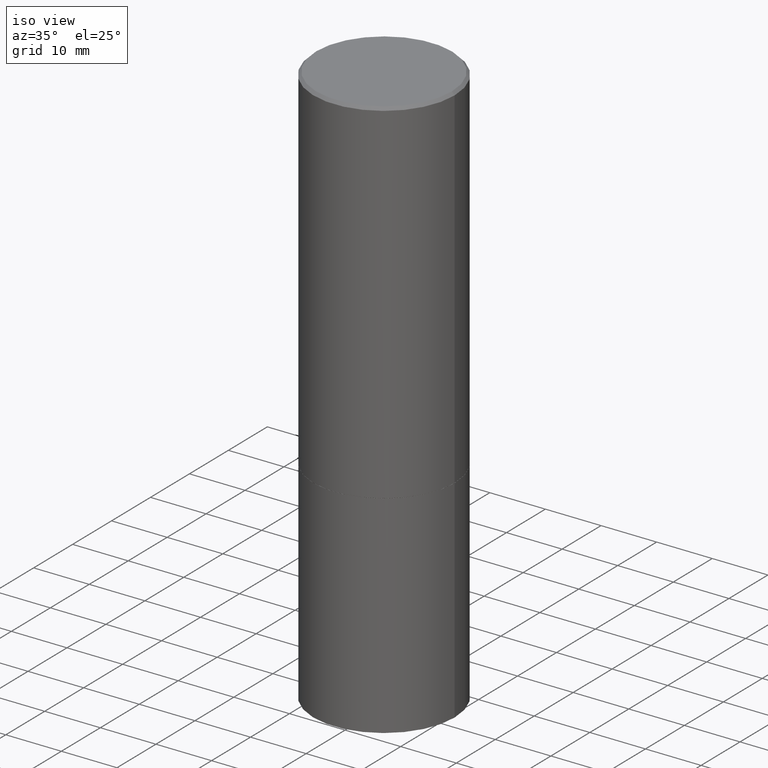
[diagram: clean part render]
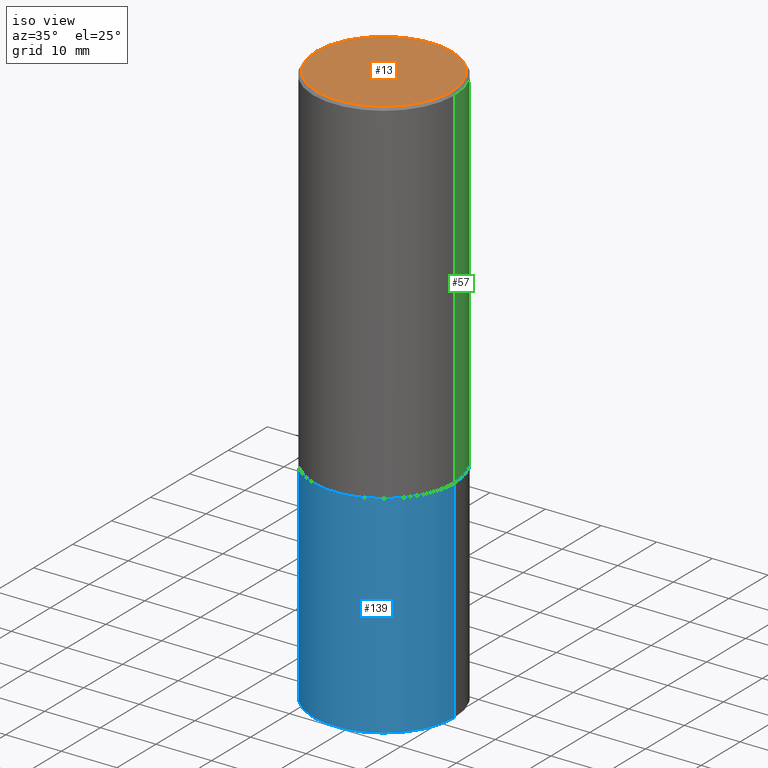
[diagram: same view with three faces highlighted in distinct colors, each labeled with its STEP entity id]
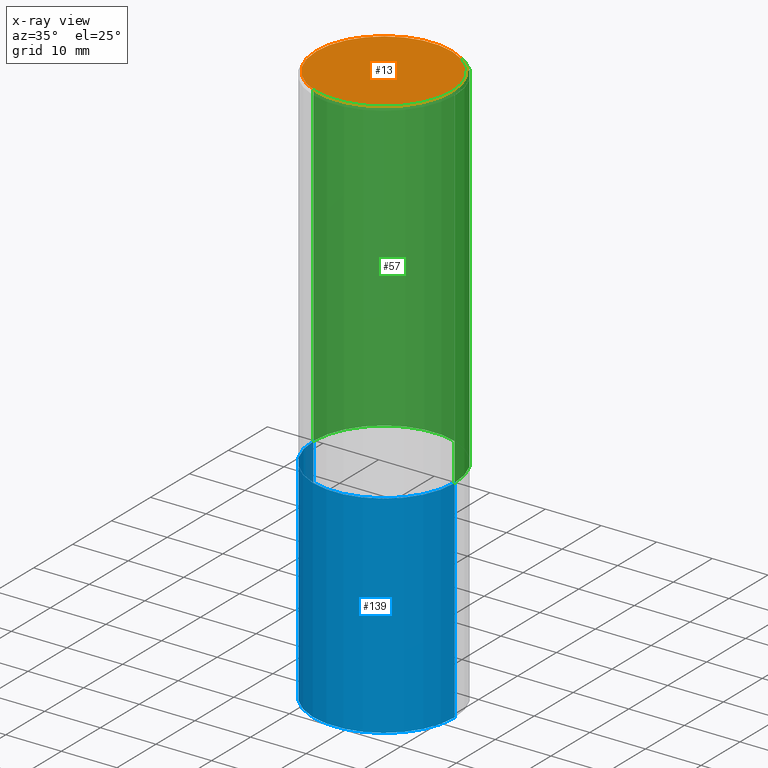
[diagram: x-ray of the same camera — body ghosted, the three highlighted faces saturated]
A machine part, iso view with three faces highlighted in distinct colors.
The next image is the same camera in x-ray (body ghosted, the three faces saturated) — at least one of them is partly hidden behind the body in this view.
Their STEP definitions:

[orange] entity #13 — the highlighted planar face has unit normal (0, -0, -1).
#13 = ADVANCED_FACE ( 'NONE', ( #15 ), #382, .F. ) ;
#15 = FACE_OUTER_BOUND ( 'NONE', #202, .T. ) ;
#27 = AXIS2_PLACEMENT_3D ( 'NONE', #49, #296, #76 ) ;
#44 = AXIS2_PLACEMENT_3D ( 'NONE', #351, #321, #240 ) ;
#49 = CARTESIAN_POINT ( 'NONE',  ( -1.043851414335219820E-46, 1.490343170380447200E-32, 4.268512490100411279E-18 ) ) ;
#71 = ORIENTED_EDGE ( 'NONE', *, *, #265, .T. ) ;
#76 = DIRECTION ( 'NONE',  ( 1.000000000000000000, -6.982962677686267499E-15, 4.876234413615774643E-29 ) ) ;
#100 = CARTESIAN_POINT ( 'NONE',  ( -0.4799999999999997047, 3.386736898677837619E-15, 4.268512490076848682E-18 ) ) ;
#101 = DIRECTION ( 'NONE',  ( -1.000000000000000000, 6.982962677686265922E-15, -4.876176775795935793E-29 ) ) ;
#190 = CIRCLE ( 'NONE', #27, 0.4799999999999997047 ) ;
#199 = VERTEX_POINT ( 'NONE', #286 ) ;
#202 = EDGE_LOOP ( 'NONE', ( #357, #71 ) ) ;
#231 = DIRECTION ( 'NONE',  ( 2.438088387897960049E-29, -3.491481338843145188E-15, -1.000000000000000000 ) ) ;
#240 = DIRECTION ( 'NONE',  ( 1.000000000000000000, -6.982962677686267499E-15, 4.876234413615774643E-29 ) ) ;
#254 = CARTESIAN_POINT ( 'NONE',  ( 3.351822085289405970E-15, 0.4799999999999997047, -1.673776786399658688E-15 ) ) ;
#265 = EDGE_CURVE ( 'NONE', #199, #290, #374, .T. ) ;
#286 = CARTESIAN_POINT ( 'NONE',  ( 0.4799999999999997047, -3.396558832296480127E-15, 4.268512490124008543E-18 ) ) ;
#290 = VERTEX_POINT ( 'NONE', #100 ) ;
#296 = DIRECTION ( 'NONE',  ( -2.445468806185136597E-29, 3.491481338843145583E-15, 1.000000000000000000 ) ) ;
#321 = DIRECTION ( 'NONE',  ( -2.445468806185136597E-29, 3.491481338843145583E-15, 1.000000000000000000 ) ) ;
#325 = EDGE_CURVE ( 'NONE', #290, #199, #190, .T. ) ;
#351 = CARTESIAN_POINT ( 'NONE',  ( -1.043851414335219820E-46, 1.490343170380447200E-32, 4.268512490100411279E-18 ) ) ;
#357 = ORIENTED_EDGE ( 'NONE', *, *, #325, .T. ) ;
#359 = AXIS2_PLACEMENT_3D ( 'NONE', #254, #231, #101 ) ;
#374 = CIRCLE ( 'NONE', #44, 0.4799999999999997047 ) ;
#382 = PLANE ( 'NONE',  #359 ) ;

[blue] entity #139 — the highlighted cylindrical surface (partial cylindrical patch) has radius 12.7 mm, axis along (-0, 0, 1).
#9 = AXIS2_PLACEMENT_3D ( 'NONE', #352, #41, #95 ) ;
#11 = CIRCLE ( 'NONE', #39, 0.5000000000000000000 ) ;
#12 = EDGE_CURVE ( 'NONE', #305, #281, #324, .T. ) ;
#22 = ORIENTED_EDGE ( 'NONE', *, *, #94, .F. ) ;
#26 = CYLINDRICAL_SURFACE ( 'NONE', #67, 0.5000000000000000000 ) ;
#39 = AXIS2_PLACEMENT_3D ( 'NONE', #242, #147, #385 ) ;
#41 = DIRECTION ( 'NONE',  ( -2.445468806185136597E-29, 3.491481338843145583E-15, 1.000000000000000000 ) ) ;
#67 = AXIS2_PLACEMENT_3D ( 'NONE', #323, #104, #211 ) ;
#73 = DIRECTION ( 'NONE',  ( -2.445468806185136877E-29, 3.491481338843145188E-15, 1.000000000000000000 ) ) ;
#79 = FACE_OUTER_BOUND ( 'NONE', #368, .T. ) ;
#93 = ORIENTED_EDGE ( 'NONE', *, *, #12, .F. ) ;
#94 = EDGE_CURVE ( 'NONE', #164, #305, #255, .T. ) ;
#95 = DIRECTION ( 'NONE',  ( 1.000000000000000000, -6.982962677686269077E-15, 0.000000000000000000 ) ) ;
#104 = DIRECTION ( 'NONE',  ( -2.445468806185136597E-29, 3.491481338843145583E-15, 1.000000000000000000 ) ) ;
#109 = CARTESIAN_POINT ( 'NONE',  ( 0.5000000000000000000, -3.491481338843133355E-15, 2.438088387897967896E-29 ) ) ;
#112 = LINE ( 'NONE', #109, #340 ) ;
#138 = CARTESIAN_POINT ( 'NONE',  ( -0.5000000000000000000, -7.794600672439723496E-15, -2.500000000000000000 ) ) ;
#139 = ADVANCED_FACE ( 'NONE', ( #79 ), #26, .T. ) ;
#147 = DIRECTION ( 'NONE',  ( -2.445468806185136597E-29, 3.491481338843145583E-15, 1.000000000000000000 ) ) ;
#160 = EDGE_CURVE ( 'NONE', #344, #281, #112, .T. ) ;
#164 = VERTEX_POINT ( 'NONE', #200 ) ;
#176 = VECTOR ( 'NONE', #188, 39.37007874015748143 ) ;
#188 = DIRECTION ( 'NONE',  ( -2.445468806185136877E-29, 3.491481338843145188E-15, 1.000000000000000000 ) ) ;
#200 = CARTESIAN_POINT ( 'NONE',  ( -0.4999999999999993894, -1.047444401652945213E-14, -4.000000000000000000 ) ) ;
#211 = DIRECTION ( 'NONE',  ( 1.000000000000000000, -6.982962677686266711E-15, 4.876176775795935793E-29 ) ) ;
#242 = CARTESIAN_POINT ( 'NONE',  ( 9.781875224740546387E-29, -1.396592535537258233E-14, -4.000000000000000000 ) ) ;
#248 = EDGE_CURVE ( 'NONE', #164, #344, #11, .T. ) ;
#255 = LINE ( 'NONE', #312, #176 ) ;
#256 = CARTESIAN_POINT ( 'NONE',  ( 0.5000000000000000000, -1.222018468595099830E-14, -2.500000000000000000 ) ) ;
#281 = VERTEX_POINT ( 'NONE', #256 ) ;
#291 = ORIENTED_EDGE ( 'NONE', *, *, #160, .T. ) ;
#304 = CARTESIAN_POINT ( 'NONE',  ( 0.4999999999999993894, -1.739617435425834338E-14, -4.000000000000000000 ) ) ;
#305 = VERTEX_POINT ( 'NONE', #138 ) ;
#312 = CARTESIAN_POINT ( 'NONE',  ( -0.5000000000000000000, 3.552713678800500929E-15, -2.459467545127452891E-29 ) ) ;
#319 = ORIENTED_EDGE ( 'NONE', *, *, #248, .T. ) ;
#323 = CARTESIAN_POINT ( 'NONE',  ( 0.000000000000000000, 0.000000000000000000, 0.000000000000000000 ) ) ;
#324 = CIRCLE ( 'NONE', #9, 0.5000000000000000000 ) ;
#340 = VECTOR ( 'NONE', #73, 39.37007874015748143 ) ;
#344 = VERTEX_POINT ( 'NONE', #304 ) ;
#352 = CARTESIAN_POINT ( 'NONE',  ( 6.113672015462842613E-29, -8.728703347107864943E-15, -2.500000000000000000 ) ) ;
#368 = EDGE_LOOP ( 'NONE', ( #22, #319, #291, #93 ) ) ;
#385 = DIRECTION ( 'NONE',  ( 1.000000000000000000, -6.982962677686266711E-15, 0.000000000000000000 ) ) ;

[green] entity #57 — the highlighted cylindrical surface (partial cylindrical patch) has radius 12.7 mm, axis along (-0, 0, 1).
#10 = CARTESIAN_POINT ( 'NONE',  ( -0.5000000000000001110, -8.448070674724403070E-16, -2.499000000000000110 ) ) ;
#16 = DIRECTION ( 'NONE',  ( -2.445468806185136597E-29, 3.491481338843145583E-15, 1.000000000000000000 ) ) ;
#25 = CARTESIAN_POINT ( 'NONE',  ( -0.4999999999999999445, 3.552713678800500535E-15, -2.459467545127452611E-29 ) ) ;
#28 = EDGE_CURVE ( 'NONE', #50, #108, #143, .T. ) ;
#37 = CARTESIAN_POINT ( 'NONE',  ( -0.4999999999999997780, 3.421651712066268479E-15, -0.02000000000000011491 ) ) ;
#50 = VERTEX_POINT ( 'NONE', #10 ) ;
#57 = ADVANCED_FACE ( 'NONE', ( #249 ), #207, .T. ) ;
#80 = AXIS2_PLACEMENT_3D ( 'NONE', #206, #300, #266 ) ;
#108 = VERTEX_POINT ( 'NONE', #37 ) ;
#110 = CARTESIAN_POINT ( 'NONE',  ( 6.111226546656657010E-29, -8.725211865769021935E-15, -2.499000000000000110 ) ) ;
#117 = DIRECTION ( 'NONE',  ( -2.445468806185136877E-29, 3.491481338843145188E-15, 1.000000000000000000 ) ) ;
#120 = AXIS2_PLACEMENT_3D ( 'NONE', #110, #306, #270 ) ;
#125 = VERTEX_POINT ( 'NONE', #320 ) ;
#143 = LINE ( 'NONE', #25, #181 ) ;
#158 = CARTESIAN_POINT ( 'NONE',  ( 0.4999999999999999445, -3.491481338843132961E-15, 2.438088387897967616E-29 ) ) ;
#159 = EDGE_CURVE ( 'NONE', #313, #108, #365, .T. ) ;
#181 = VECTOR ( 'NONE', #117, 39.37007874015748143 ) ;
#201 = CARTESIAN_POINT ( 'NONE',  ( 0.4999999999999997780, -3.500078625662627896E-15, -0.02000000000000011491 ) ) ;
#205 = EDGE_CURVE ( 'NONE', #125, #313, #315, .T. ) ;
#206 = CARTESIAN_POINT ( 'NONE',  ( 4.890937612370302060E-31, -6.982962677686331052E-17, -0.02000000000000011491 ) ) ;
#207 = CYLINDRICAL_SURFACE ( 'NONE', #278, 0.4999999999999999445 ) ;
#230 = VECTOR ( 'NONE', #253, 39.37007874015748143 ) ;
#249 = FACE_OUTER_BOUND ( 'NONE', #353, .T. ) ;
#251 = DIRECTION ( 'NONE',  ( 1.000000000000000000, -6.982962677686266711E-15, 4.876176775795935793E-29 ) ) ;
#252 = ORIENTED_EDGE ( 'NONE', *, *, #205, .F. ) ;
#253 = DIRECTION ( 'NONE',  ( -2.445468806185136877E-29, 3.491481338843145188E-15, 1.000000000000000000 ) ) ;
#266 = DIRECTION ( 'NONE',  ( 1.000000000000000000, -6.982962677686266711E-15, 0.000000000000000000 ) ) ;
#270 = DIRECTION ( 'NONE',  ( 1.000000000000000000, -6.982962677686267499E-15, 0.000000000000000000 ) ) ;
#271 = CIRCLE ( 'NONE', #120, 0.5000000000000001110 ) ;
#278 = AXIS2_PLACEMENT_3D ( 'NONE', #331, #16, #251 ) ;
#294 = ORIENTED_EDGE ( 'NONE', *, *, #28, .T. ) ;
#300 = DIRECTION ( 'NONE',  ( -2.445468806185136597E-29, 3.491481338843145583E-15, 1.000000000000000000 ) ) ;
#306 = DIRECTION ( 'NONE',  ( -2.445468806185136597E-29, 3.491481338843145583E-15, 1.000000000000000000 ) ) ;
#309 = ORIENTED_EDGE ( 'NONE', *, *, #159, .F. ) ;
#313 = VERTEX_POINT ( 'NONE', #201 ) ;
#315 = LINE ( 'NONE', #158, #230 ) ;
#320 = CARTESIAN_POINT ( 'NONE',  ( 0.5000000000000001110, -1.221669320461215687E-14, -2.499000000000000110 ) ) ;
#331 = CARTESIAN_POINT ( 'NONE',  ( 0.000000000000000000, 0.000000000000000000, 0.000000000000000000 ) ) ;
#333 = EDGE_CURVE ( 'NONE', #125, #50, #271, .T. ) ;
#342 = ORIENTED_EDGE ( 'NONE', *, *, #333, .T. ) ;
#353 = EDGE_LOOP ( 'NONE', ( #342, #294, #309, #252 ) ) ;
#365 = CIRCLE ( 'NONE', #80, 0.4999999999999997780 ) ;